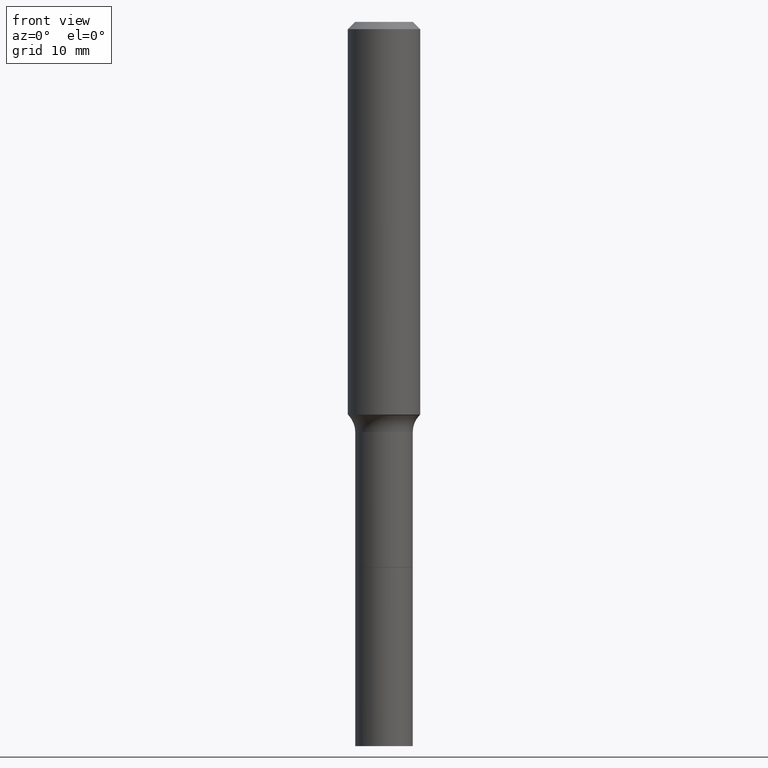
[diagram: clean part render]
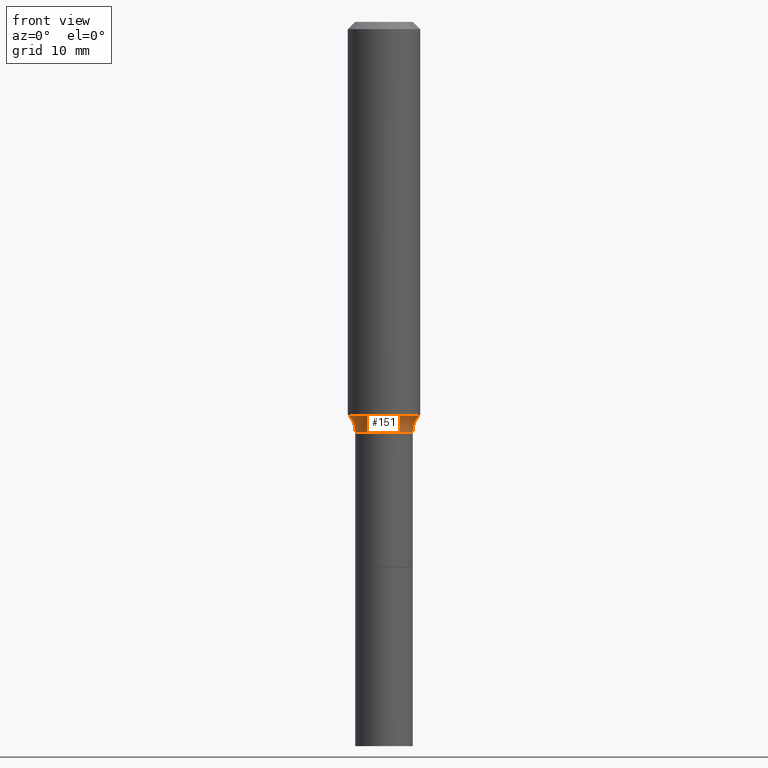
[diagram: same view with one face highlighted and labeled with its STEP entity id]
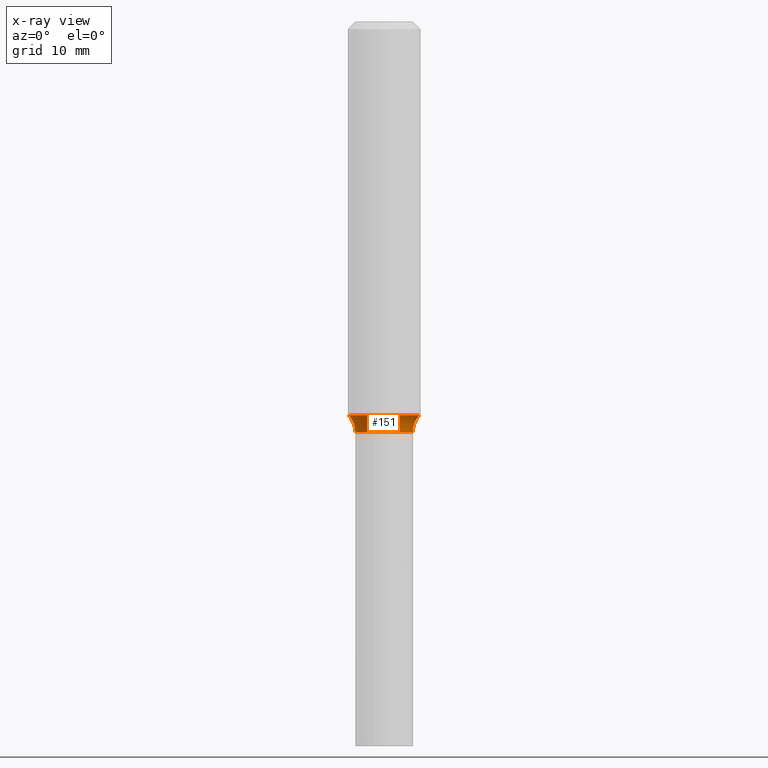
[diagram: x-ray of the same camera — body ghosted, the highlighted face saturated]
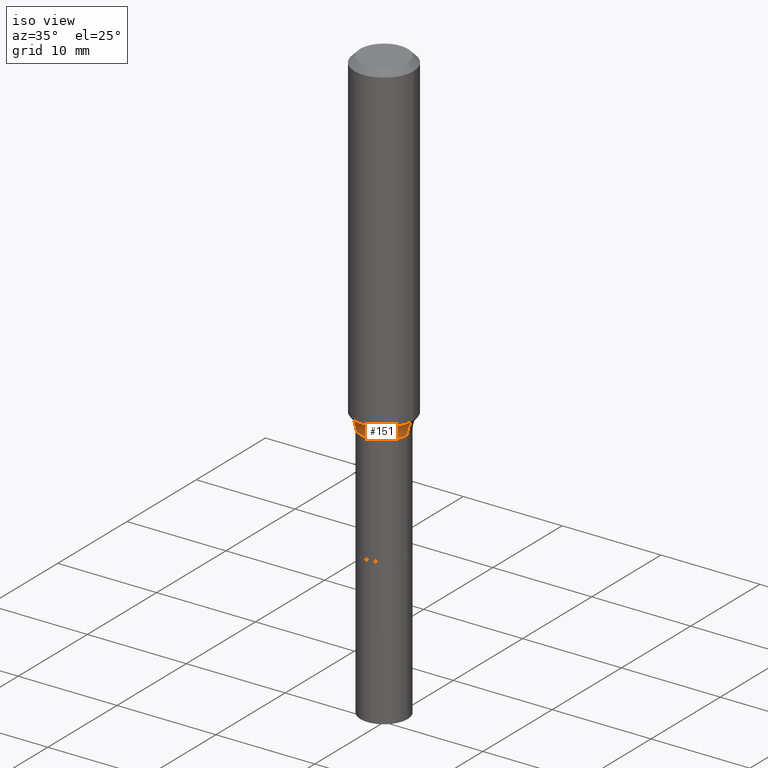
[diagram: same view with one face highlighted and labeled with its STEP entity id]
A machine part, front view. The second image highlights one B-rep face of the part: STEP entity #151.
The next image is the same camera in x-ray: the body ghosted, the highlighted face saturated — about 0% of this face is hidden behind the body in this view.
A second angle (iso view) of the same face is appended — the face is thin or edge-on in the first view.
In plain terms, the highlighted toroidal blend (fillet) surface has major radius 4.4132 mm and minor (blend) radius 2.032 mm.
Its self-contained STEP definition (entity closure, byte-faithful):
#12 = CARTESIAN_POINT ( 'NONE',  ( 0.1152417038704663804, -5.286534080897948923E-15, -1.283640131194999867 ) ) ;
#18 = CIRCLE ( 'NONE', #171, 0.08000000000000007105 ) ;
#29 = DIRECTION ( 'NONE',  ( 7.105427357601001859E-15, 1.000000000000000000, -3.491481338843145583E-15 ) ) ;
#41 = DIRECTION ( 'NONE',  ( -2.445468806185136597E-29, 3.491481338843145583E-15, 1.000000000000000000 ) ) ;
#51 = VERTEX_POINT ( 'NONE', #12 ) ;
#68 = DIRECTION ( 'NONE',  ( 1.000000000000000000, -6.982962677686268288E-15, 4.883557194083112901E-29 ) ) ;
#89 = EDGE_CURVE ( 'NONE', #223, #153, #348, .T. ) ;
#105 = DIRECTION ( 'NONE',  ( 1.000000000000000000, -6.982962677686265922E-15, 0.000000000000000000 ) ) ;
#107 = FACE_OUTER_BOUND ( 'NONE', #120, .T. ) ;
#113 = CIRCLE ( 'NONE', #431, 0.1152417038704663249 ) ;
#120 = EDGE_LOOP ( 'NONE', ( #154, #229, #276, #398 ) ) ;
#126 = DIRECTION ( 'NONE',  ( 1.000000000000000000, -6.982962677686263555E-15, 0.000000000000000000 ) ) ;
#139 = CARTESIAN_POINT ( 'NONE',  ( 0.1737499999999999600, -5.885590092887885901E-15, -1.338200000000000056 ) ) ;
#142 = CARTESIAN_POINT ( 'NONE',  ( 3.272526356436949336E-29, -4.672300327639896745E-15, -1.338200000000000056 ) ) ;
#151 = ADVANCED_FACE ( 'NONE', ( #107 ), #413, .F. ) ;
#153 = VERTEX_POINT ( 'NONE', #339 ) ;
#154 = ORIENTED_EDGE ( 'NONE', *, *, #370, .F. ) ;
#171 = AXIS2_PLACEMENT_3D ( 'NONE', #214, #29, #220 ) ;
#174 = EDGE_CURVE ( 'NONE', #269, #223, #18, .T. ) ;
#186 = AXIS2_PLACEMENT_3D ( 'NONE', #497, #41, #403 ) ;
#214 = CARTESIAN_POINT ( 'NONE',  ( -0.1737499999999999600, -3.437732324256722956E-15, -1.338200000000000056 ) ) ;
#220 = DIRECTION ( 'NONE',  ( -1.000000000000000000, 7.105427357600997914E-15, 0.000000000000000000 ) ) ;
#223 = VERTEX_POINT ( 'NONE', #296 ) ;
#229 = ORIENTED_EDGE ( 'NONE', *, *, #174, .T. ) ;
#239 = EDGE_CURVE ( 'NONE', #51, #153, #377, .T. ) ;
#260 = DIRECTION ( 'NONE',  ( -6.982962677686266711E-15, -1.000000000000000000, 3.491481338843145583E-15 ) ) ;
#261 = CARTESIAN_POINT ( 'NONE',  ( -0.1152417038704663804, -3.662964008439744293E-15, -1.283640131194999867 ) ) ;
#269 = VERTEX_POINT ( 'NONE', #261 ) ;
#275 = AXIS2_PLACEMENT_3D ( 'NONE', #139, #260, #105 ) ;
#276 = ORIENTED_EDGE ( 'NONE', *, *, #89, .T. ) ;
#292 = DIRECTION ( 'NONE',  ( -2.445468806185136597E-29, 3.491481338843145583E-15, 1.000000000000000000 ) ) ;
#296 = CARTESIAN_POINT ( 'NONE',  ( -0.09374999999999995837, -4.775165277745006303E-15, -1.338200000000000056 ) ) ;
#339 = CARTESIAN_POINT ( 'NONE',  ( 0.09374999999999995837, -5.326953078672984249E-15, -1.338200000000000056 ) ) ;
#348 = CIRCLE ( 'NONE', #186, 0.09374999999999995837 ) ;
#370 = EDGE_CURVE ( 'NONE', #269, #51, #113, .T. ) ;
#377 = CIRCLE ( 'NONE', #275, 0.08000000000000007105 ) ;
#398 = ORIENTED_EDGE ( 'NONE', *, *, #239, .F. ) ;
#403 = DIRECTION ( 'NONE',  ( 1.000000000000000000, -6.982962677686265922E-15, 0.000000000000000000 ) ) ;
#413 = TOROIDAL_SURFACE ( 'NONE', #489, 0.1737499999999999600, 0.08000000000000007105 ) ;
#431 = AXIS2_PLACEMENT_3D ( 'NONE', #492, #518, #126 ) ;
#489 = AXIS2_PLACEMENT_3D ( 'NONE', #142, #292, #68 ) ;
#492 = CARTESIAN_POINT ( 'NONE',  ( 3.139101899204768444E-29, -4.481805563857509473E-15, -1.283640131194999867 ) ) ;
#497 = CARTESIAN_POINT ( 'NONE',  ( 3.272526356436949336E-29, -4.672300327639896745E-15, -1.338200000000000056 ) ) ;
#518 = DIRECTION ( 'NONE',  ( -2.445468806185136597E-29, 3.491481338843145583E-15, 1.000000000000000000 ) ) ;